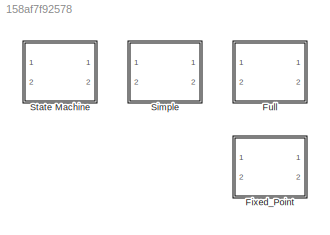
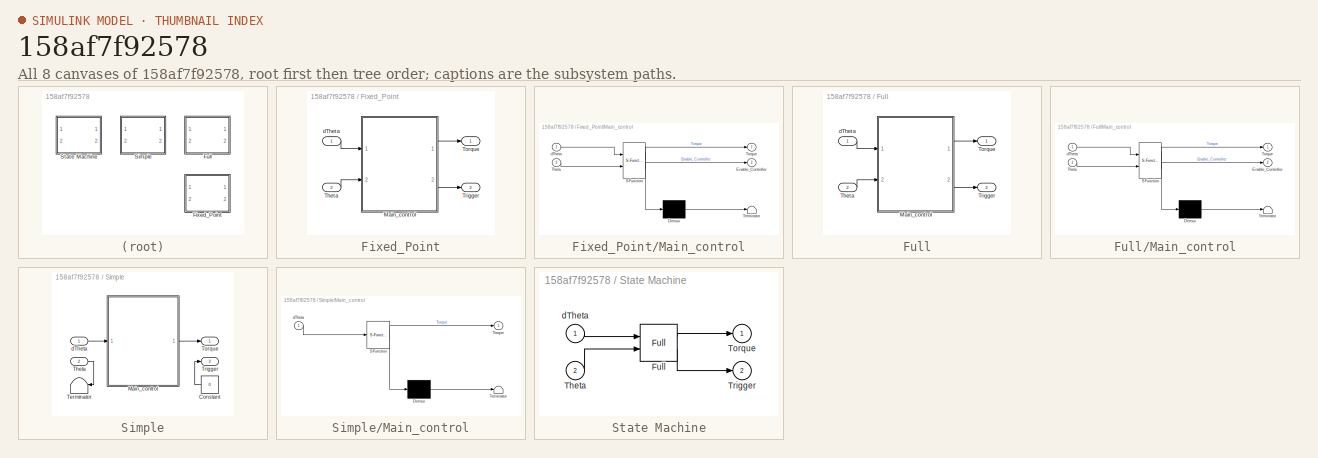
[diagram: thumbnail index - all 8 canvases of the model, root first then tree order]
MODEL slx_158af7f92578
KIND library
CONFIG AbsTol = auto
CONFIG FixedStep = auto
CONFIG MaxStep = auto
CONFIG MinStep = auto
CONFIG RelTol = 1e-3
CONFIG SampleTimeConstraint = Unconstrained
CONFIG Solver = ode45
CONFIG SolverMode = SingleTasking
CONFIG SolverName = ode45
CONFIG StartTime = 0.0
CONFIG StopTime = 10.0
BLOCK [SubSystem] Fixed_Point
  Ports = [2, 2]
  RequestExecContextInheritance = off
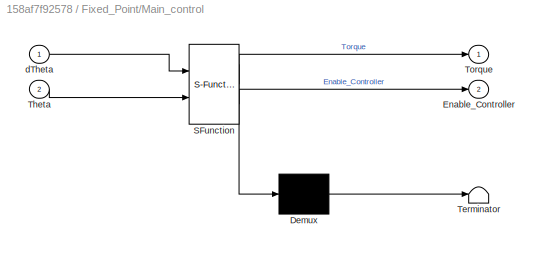
BLOCK [SubSystem] Fixed_Point/Main_control
  ErrorFcn = Stateflow.Translate.translate
  PermitHierarchicalResolution = ExplicitOnly
  Ports = [2, 2]
  RequestExecContextInheritance = off
  SFBlockType = Chart
  TreatAsAtomicUnit = on
BLOCK [Demux] Fixed_Point/Main_control/ Demux 
  Outputs = 1
  Ports = [1, 1]
BLOCK [S-Function] Fixed_Point/Main_control/ SFunction 
  FunctionName = sf_sfun
  Parameters = THETA_BALANCING,THETA_SWING,THETA_WAIT,TORQUE_LEVEL
  PortCounts = [2 3]
  Ports = [2, 3]
  Tag = Stateflow S-Function State_Machine 3
BLOCK [Terminator] Fixed_Point/Main_control/ Terminator 
BLOCK [Outport] Fixed_Point/Main_control/Enable_Controller
  IconDisplay = Port number
  Port = 2
BLOCK [Inport] Fixed_Point/Main_control/Theta
  IconDisplay = Port number
  Port = 2
BLOCK [Outport] Fixed_Point/Main_control/Torque
  IconDisplay = Port number
BLOCK [Inport] Fixed_Point/Main_control/dTheta
  IconDisplay = Port number
BLOCK [Inport] Fixed_Point/Theta
  IconDisplay = Port number
  Port = 2
BLOCK [Outport] Fixed_Point/Torque
  IconDisplay = Port number
BLOCK [Outport] Fixed_Point/Trigger
  IconDisplay = Port number
  Port = 2
BLOCK [Inport] Fixed_Point/dTheta
  IconDisplay = Port number
BLOCK [SubSystem] Full
  Ports = [2, 2]
  RequestExecContextInheritance = off
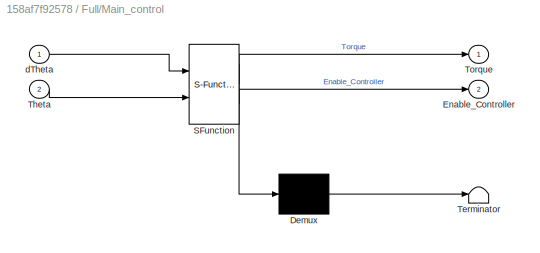
BLOCK [SubSystem] Full/Main_control
  ErrorFcn = Stateflow.Translate.translate
  PermitHierarchicalResolution = ExplicitOnly
  Ports = [2, 2]
  RequestExecContextInheritance = off
  SFBlockType = Chart
  TreatAsAtomicUnit = on
BLOCK [Demux] Full/Main_control/ Demux 
  Outputs = 1
  Ports = [1, 1]
BLOCK [S-Function] Full/Main_control/ SFunction 
  FunctionName = sf_sfun
  Parameters = THETA_BALANCING,THETA_SWING,THETA_WAIT,TORQUE_LEVEL
  PortCounts = [2 3]
  Ports = [2, 3]
  Tag = Stateflow S-Function State_Machine 1
BLOCK [Terminator] Full/Main_control/ Terminator 
BLOCK [Outport] Full/Main_control/Enable_Controller
  IconDisplay = Port number
  Port = 2
BLOCK [Inport] Full/Main_control/Theta
  IconDisplay = Port number
  Port = 2
BLOCK [Outport] Full/Main_control/Torque
  IconDisplay = Port number
BLOCK [Inport] Full/Main_control/dTheta
  IconDisplay = Port number
BLOCK [Inport] Full/Theta
  IconDisplay = Port number
  Port = 2
BLOCK [Outport] Full/Torque
  IconDisplay = Port number
BLOCK [Outport] Full/Trigger
  IconDisplay = Port number
  Port = 2
BLOCK [Inport] Full/dTheta
  IconDisplay = Port number
BLOCK [SubSystem] Simple
  Ports = [2, 2]
  RequestExecContextInheritance = off
BLOCK [Constant] Simple/Constant
  Value = 0
BLOCK [SubSystem] Simple/Main_control
  ErrorFcn = Stateflow.Translate.translate
  PermitHierarchicalResolution = ExplicitOnly
  Ports = [1, 1]
  RequestExecContextInheritance = off
  SFBlockType = Chart
  TreatAsAtomicUnit = on
BLOCK [Demux] Simple/Main_control/ Demux 
  Outputs = 1
  Ports = [1, 1]
BLOCK [S-Function] Simple/Main_control/ SFunction 
  FunctionName = sf_sfun
  Parameters = TORQUE_LEVEL
  PortCounts = [1 2]
  Ports = [1, 2]
  Tag = Stateflow S-Function State_Machine 2
BLOCK [Terminator] Simple/Main_control/ Terminator 
BLOCK [Outport] Simple/Main_control/Torque
  IconDisplay = Port number
BLOCK [Inport] Simple/Main_control/dTheta
  IconDisplay = Port number
BLOCK [Terminator] Simple/Terminator
BLOCK [Inport] Simple/Theta
  IconDisplay = Port number
  Port = 2
BLOCK [Outport] Simple/Torque
  IconDisplay = Port number
BLOCK [Outport] Simple/Trigger
  IconDisplay = Port number
  Port = 2
BLOCK [Inport] Simple/dTheta
  IconDisplay = Port number
BLOCK [SubSystem] State Machine
  BlockChoice = Full
  MemberBlocks = Fixed_Point,Full,Simple
  Ports = [2, 2]
  RequestExecContextInheritance = off
  TemplateBlock = self
BLOCK [Reference] State Machine/Full  REF=State_Machine/Full
  FunctionWithSeparateData = off
  GeneratePreprocessorConditionals = off
  Ports = [2, 2]
  ShowPortLabels = FromPortIcon
  SourceBlock = State_Machine/Full
  SystemSampleTime = -1
BLOCK [Inport] State Machine/Theta
  IconDisplay = Port number
  Port = 2
BLOCK [Outport] State Machine/Torque
  IconDisplay = Port number
BLOCK [Outport] State Machine/Trigger
  IconDisplay = Port number
  Port = 2
BLOCK [Inport] State Machine/dTheta
  IconDisplay = Port number
LINE Fixed_Point/Main_control:1 -> Fixed_Point/Torque:1
LINE Fixed_Point/Main_control:2 -> Fixed_Point/Trigger:1
LINE Fixed_Point/Theta:1 -> Fixed_Point/Main_control:2
LINE Fixed_Point/dTheta:1 -> Fixed_Point/Main_control:1
LINE Full/Main_control:1 -> Full/Torque:1
LINE Full/Main_control:2 -> Full/Trigger:1
LINE Full/Theta:1 -> Full/Main_control:2
LINE Full/dTheta:1 -> Full/Main_control:1
LINE Simple/Constant:1 -> Simple/Trigger:1
LINE Simple/Main_control:1 -> Simple/Torque:1
LINE Simple/Theta:1 -> Simple/Terminator:1
LINE Simple/dTheta:1 -> Simple/Main_control:1
LINE State Machine/Full:1 -> State Machine/Torque:1
LINE State Machine/Full:2 -> State Machine/Trigger:1
LINE State Machine/Theta:1 -> State Machine/Full:2
LINE State Machine/dTheta:1 -> State Machine/Full:1
CHART Full/Main_control states=5 transitions=14
  STATE_LABEL 'Startup'
  STATE_LABEL 'Swingright\nduring:\nTorque = TORQUE_LEVEL;'
  STATE_LABEL 'Swingleft\nduring:\nTorque = -TORQUE_LEVEL;'
  STATE_LABEL 'Wait\nentry:\nTorque = 0;'
  STATE_LABEL 'Balancing\nentry:\nEnable_Controller = 1;\nexit:\nEnable_Controller = 0;'
CHART Simple/Main_control states=3 transitions=6
  STATE_LABEL 'Startup'
  STATE_LABEL 'Swingleft\nduring:\nTorque = -TORQUE_LEVEL;'
  STATE_LABEL 'Swingright\nduring:\nTorque = TORQUE_LEVEL;'
CHART Fixed_Point/Main_control states=5 transitions=14
  STATE_LABEL 'Startup'
  STATE_LABEL 'Swingright\nduring:\nTorque = TORQUE_LEVEL;'
  STATE_LABEL 'Swingleft\nduring:\nTorque = -TORQUE_LEVEL;'
  STATE_LABEL 'Wait\nentry:\nTorque = 0;'
  STATE_LABEL 'Balancing\nentry:\nEnable_Controller = 1;\nexit:\nEnable_Controller = 0;'
